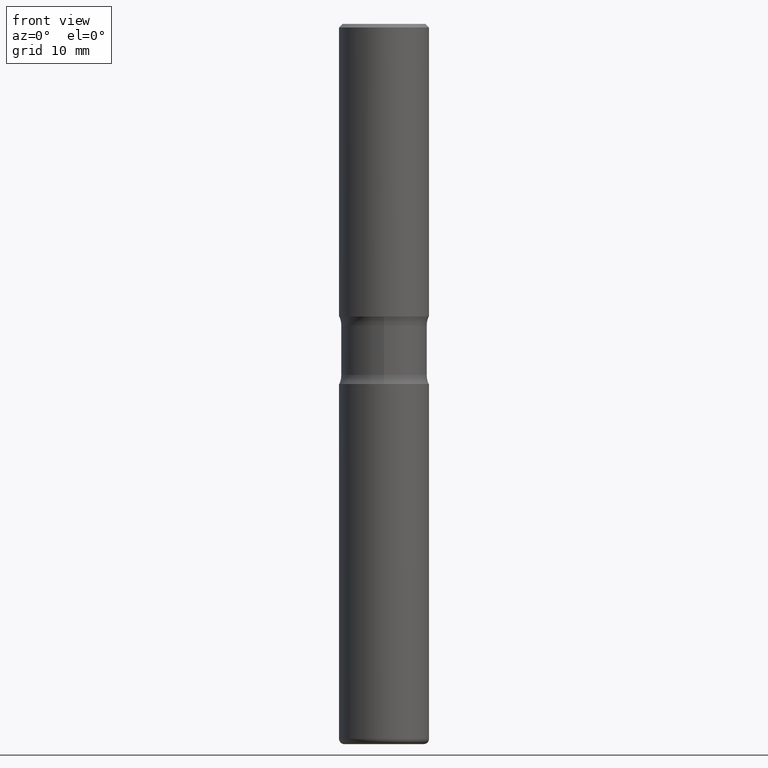
[diagram: clean part render]
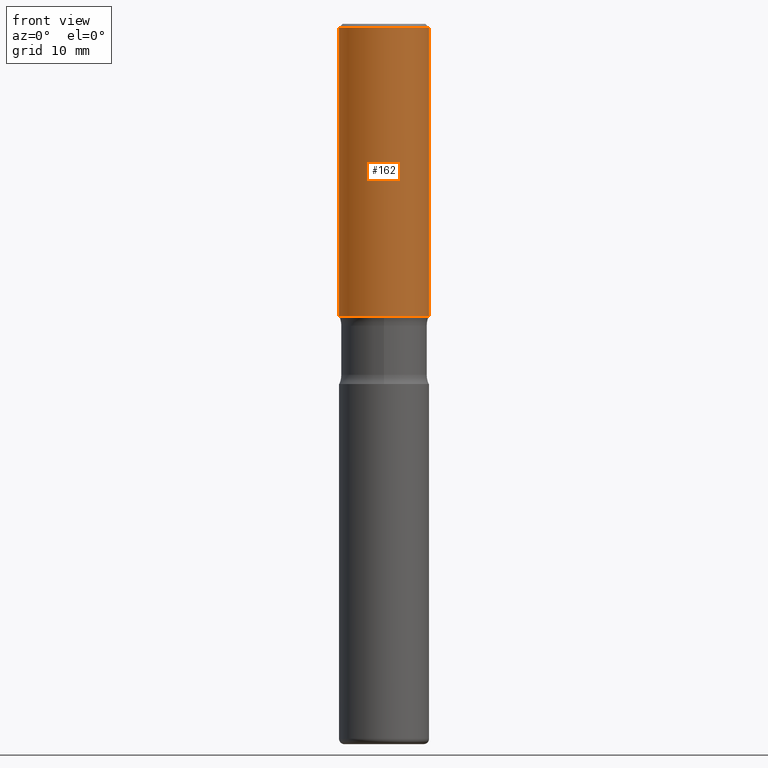
[diagram: same view with one face highlighted and labeled with its STEP entity id]
A machine part, front view. The second image highlights one B-rep face of the part: STEP entity #162.
In plain terms, the highlighted cylindrical surface (partial cylindrical patch) has radius 6.35 mm, axis along (-0, 0, 1).
Its self-contained STEP definition (entity closure, byte-faithful):
#11 = CARTESIAN_POINT ( 'NONE',  ( -0.2500000000000003331, 1.675911042644705746E-15, -0.02000000000000013572 ) ) ;
#14 = AXIS2_PLACEMENT_3D ( 'NONE', #319, #226, #490 ) ;
#55 = CARTESIAN_POINT ( 'NONE',  ( 4.890937612370306439E-31, -6.982962677686338448E-17, -0.02000000000000013572 ) ) ;
#118 = ORIENTED_EDGE ( 'NONE', *, *, #427, .F. ) ;
#132 = EDGE_CURVE ( 'NONE', #382, #245, #560, .T. ) ;
#136 = FACE_OUTER_BOUND ( 'NONE', #346, .T. ) ;
#152 = EDGE_CURVE ( 'NONE', #224, #382, #518, .T. ) ;
#154 = ORIENTED_EDGE ( 'NONE', *, *, #132, .T. ) ;
#159 = DIRECTION ( 'NONE',  ( -2.445468806185136877E-29, 3.491481338843145188E-15, 1.000000000000000000 ) ) ;
#162 = ADVANCED_FACE ( 'NONE', ( #136 ), #483, .T. ) ;
#165 = VECTOR ( 'NONE', #159, 39.37007874015748143 ) ;
#167 = CARTESIAN_POINT ( 'NONE',  ( 0.2500000000000004996, -1.745740669421570030E-15, 1.219044193948986190E-29 ) ) ;
#182 = CARTESIAN_POINT ( 'NONE',  ( 0.2500000000000005551, -7.419397845041682046E-15, -1.624999999999999778 ) ) ;
#207 = ORIENTED_EDGE ( 'NONE', *, *, #152, .T. ) ;
#215 = CARTESIAN_POINT ( 'NONE',  ( 0.2500000000000003331, -1.784954126219748555E-15, -0.02000000000000013572 ) ) ;
#221 = CARTESIAN_POINT ( 'NONE',  ( 3.973886810050846409E-29, -5.673657175620110635E-15, -1.624999999999999778 ) ) ;
#224 = VERTEX_POINT ( 'NONE', #531 ) ;
#226 = DIRECTION ( 'NONE',  ( -2.445468806185136597E-29, 3.491481338843145583E-15, 1.000000000000000000 ) ) ;
#228 = AXIS2_PLACEMENT_3D ( 'NONE', #55, #244, #545 ) ;
#244 = DIRECTION ( 'NONE',  ( -2.445468806185136597E-29, 3.491481338843145583E-15, 1.000000000000000000 ) ) ;
#245 = VERTEX_POINT ( 'NONE', #215 ) ;
#250 = CARTESIAN_POINT ( 'NONE',  ( -0.2500000000000004996, 1.776356839400254015E-15, -1.229733772563728688E-29 ) ) ;
#319 = CARTESIAN_POINT ( 'NONE',  ( 0.000000000000000000, 0.000000000000000000, 0.000000000000000000 ) ) ;
#337 = LINE ( 'NONE', #250, #165 ) ;
#338 = VERTEX_POINT ( 'NONE', #11 ) ;
#346 = EDGE_LOOP ( 'NONE', ( #385, #207, #154, #118 ) ) ;
#382 = VERTEX_POINT ( 'NONE', #182 ) ;
#385 = ORIENTED_EDGE ( 'NONE', *, *, #476, .F. ) ;
#397 = VECTOR ( 'NONE', #467, 39.37007874015748143 ) ;
#405 = DIRECTION ( 'NONE',  ( 1.000000000000000000, -6.982962677686266711E-15, 0.000000000000000000 ) ) ;
#427 = EDGE_CURVE ( 'NONE', #338, #245, #432, .T. ) ;
#432 = CIRCLE ( 'NONE', #228, 0.2500000000000003331 ) ;
#447 = DIRECTION ( 'NONE',  ( -2.445468806185136597E-29, 3.491481338843145583E-15, 1.000000000000000000 ) ) ;
#467 = DIRECTION ( 'NONE',  ( -2.445468806185136877E-29, 3.491481338843145188E-15, 1.000000000000000000 ) ) ;
#476 = EDGE_CURVE ( 'NONE', #224, #338, #337, .T. ) ;
#483 = CYLINDRICAL_SURFACE ( 'NONE', #14, 0.2500000000000004996 ) ;
#490 = DIRECTION ( 'NONE',  ( 1.000000000000000000, -6.982962677686265922E-15, 4.876176775795935232E-29 ) ) ;
#518 = CIRCLE ( 'NONE', #522, 0.2500000000000005551 ) ;
#522 = AXIS2_PLACEMENT_3D ( 'NONE', #221, #447, #405 ) ;
#531 = CARTESIAN_POINT ( 'NONE',  ( -0.2500000000000005551, -1.095386561798230783E-15, -1.624999999999999778 ) ) ;
#545 = DIRECTION ( 'NONE',  ( 1.000000000000000000, -6.982962677686266711E-15, 0.000000000000000000 ) ) ;
#560 = LINE ( 'NONE', #167, #397 ) ;